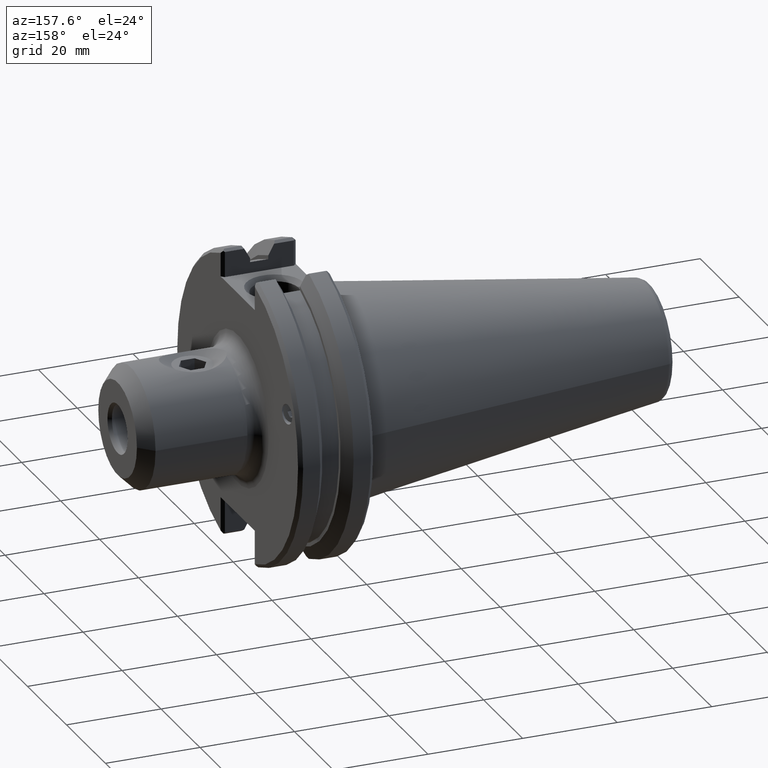
[diagram: clean part render]
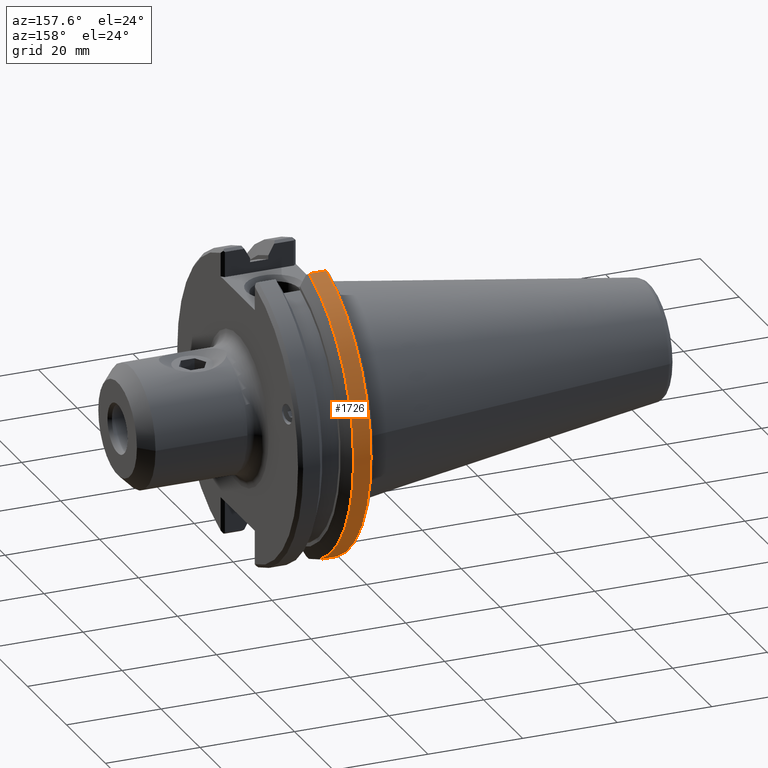
[diagram: same view with one face highlighted and labeled with its STEP entity id]
A machine part, auxiliary view. The second image highlights one B-rep face of the part: STEP entity #1726.
In plain terms, the highlighted cylindrical surface (partial cylindrical patch) has radius 31.75 mm, axis along (1, 0, 0).
Its self-contained STEP definition (entity closure, byte-faithful):
#1577=CARTESIAN_POINT('',(0.155000000000305,0.34409810679765,-1.201705659842822));
#1578=VERTEX_POINT('',#1577);
#1592=CARTESIAN_POINT('',(0.299526127773345,0.34409810679765,-1.201705659842822));
#1593=VERTEX_POINT('',#1592);
#1594=CARTESIAN_POINT('',(0.155000000000305,0.34409810679765,-1.201705659842822));
#1595=DIRECTION('',(1.0,0.0,0.0));
#1596=VECTOR('',#1595,0.14452612777304);
#1597=LINE('',#1594,#1596);
#1598=EDGE_CURVE('',#1578,#1593,#1597,.T.);
#1638=CARTESIAN_POINT('',(0.299526127773345,0.344098106797714,1.201705659842804));
#1639=VERTEX_POINT('',#1638);
#1640=CARTESIAN_POINT('',(0.299526127773345,0.0,0.0));
#1641=DIRECTION('',(-1.0,2.436770E-013,0.0));
#1642=DIRECTION('',(2.436770E-013,1.0,0.0));
#1643=AXIS2_PLACEMENT_3D('',#1640,#1641,#1642);
#1644=CIRCLE('',#1643,1.25);
#1645=EDGE_CURVE('',#1639,#1593,#1644,.T.);
#1702=CARTESIAN_POINT('',(0.4375,0.0,0.0));
#1703=DIRECTION('',(1.0,0.0,0.0));
#1704=DIRECTION('',(2.436770E-013,1.0,0.0));
#1705=AXIS2_PLACEMENT_3D('',#1702,#1703,#1704);
#1706=CYLINDRICAL_SURFACE('',#1705,1.25);
#1707=ORIENTED_EDGE('',*,*,#1598,.F.);
#1708=CARTESIAN_POINT('',(0.155000000000305,0.344098106797714,1.201705659842804));
#1709=VERTEX_POINT('',#1708);
#1710=CARTESIAN_POINT('',(0.155000000000305,0.0,0.0));
#1711=DIRECTION('',(-1.0,2.436770E-013,0.0));
#1712=DIRECTION('',(2.436770E-013,1.0,0.0));
#1713=AXIS2_PLACEMENT_3D('',#1710,#1711,#1712);
#1714=CIRCLE('',#1713,1.25);
#1715=EDGE_CURVE('',#1709,#1578,#1714,.T.);
#1716=ORIENTED_EDGE('',*,*,#1715,.F.);
#1717=CARTESIAN_POINT('',(0.299526127773345,0.344098106797714,1.201705659842804));
#1718=DIRECTION('',(-1.0,0.0,0.0));
#1719=VECTOR('',#1718,0.14452612777304);
#1720=LINE('',#1717,#1719);
#1721=EDGE_CURVE('',#1639,#1709,#1720,.T.);
#1722=ORIENTED_EDGE('',*,*,#1721,.F.);
#1723=ORIENTED_EDGE('',*,*,#1645,.T.);
#1724=EDGE_LOOP('',(#1707,#1716,#1722,#1723));
#1725=FACE_OUTER_BOUND('',#1724,.T.);
#1726=ADVANCED_FACE('',(#1725),#1706,.T.);